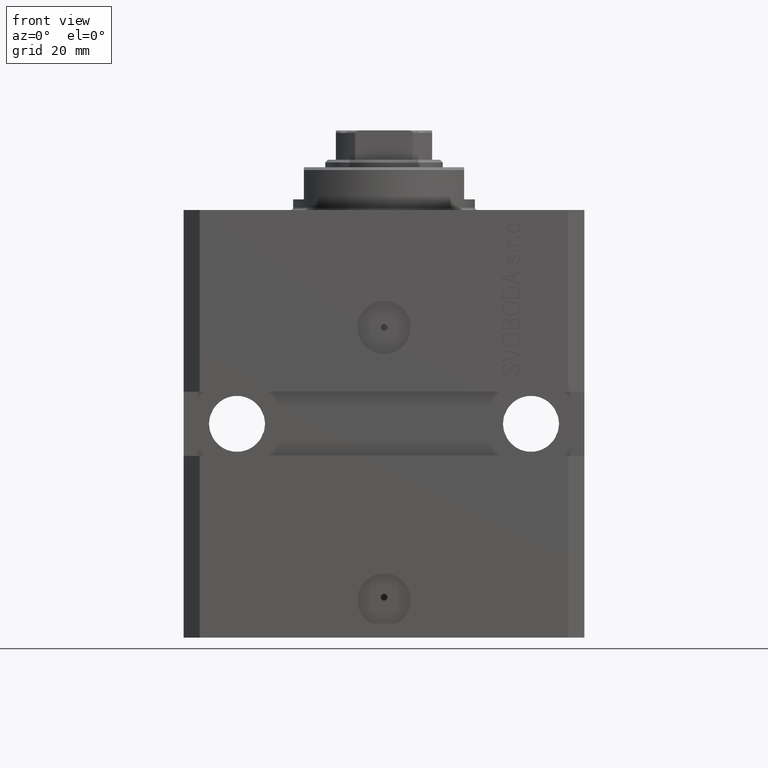
[diagram: clean part render]
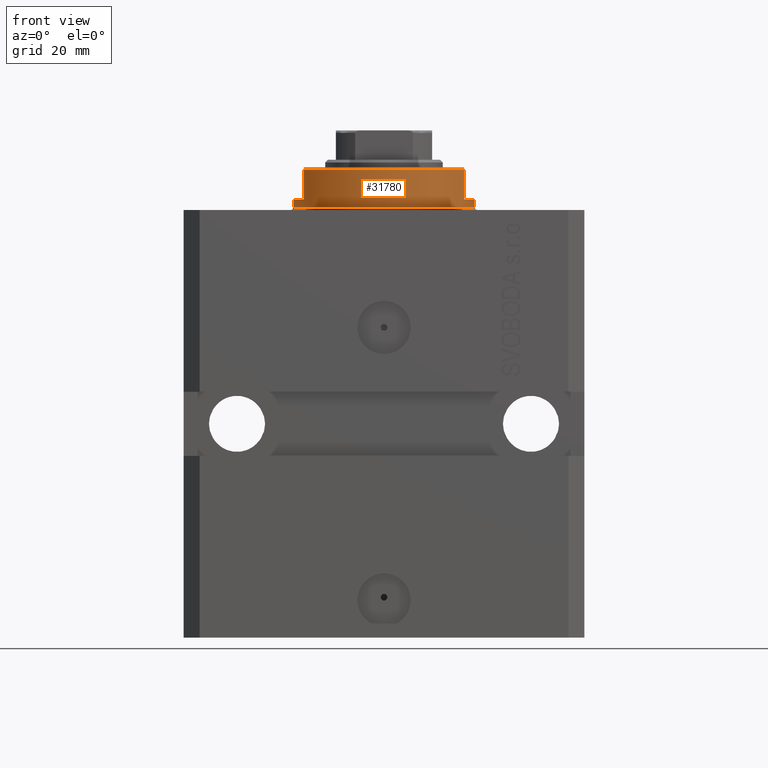
[diagram: same view with one face highlighted and labeled with its STEP entity id]
A machine part, front view. The second image highlights one B-rep face of the part: STEP entity #31780.
In plain terms, the highlighted cylindrical surface (partial cylindrical patch) has radius 17 mm, axis along (0, 0, -1).
Its self-contained STEP definition (entity closure, byte-faithful):
#382 = ORIENTED_EDGE ( 'NONE', *, *, #32406, .F. ) ;
#459 = ORIENTED_EDGE ( 'NONE', *, *, #1321, .F. ) ;
#520 = VERTEX_POINT ( 'NONE', #15144 ) ;
#963 = DIRECTION ( 'NONE',  ( -1.000000000000000000, 0.000000000000000000, 0.000000000000000000 ) ) ;
#1137 = EDGE_LOOP ( 'NONE', ( #459, #382, #44214, #12694, #5990, #39937, #24393, #39752 ) ) ;
#1321 = EDGE_CURVE ( 'NONE', #12578, #42264, #26573, .T. ) ;
#1486 = CARTESIAN_POINT ( 'NONE',  ( -17.00000000000000000, 2.081899558550500280E-15, -8.000000000000000000 ) ) ;
#1886 = CARTESIAN_POINT ( 'NONE',  ( -14.99999999999999645, -8.000000000000003553, -2.000000000000000000 ) ) ;
#3651 = AXIS2_PLACEMENT_3D ( 'NONE', #16587, #45487, #5460 ) ;
#5460 = DIRECTION ( 'NONE',  ( -1.000000000000000000, 0.000000000000000000, 0.000000000000000000 ) ) ;
#5905 = AXIS2_PLACEMENT_3D ( 'NONE', #18901, #12926, #27374 ) ;
#5990 = ORIENTED_EDGE ( 'NONE', *, *, #12316, .F. ) ;
#7098 = VERTEX_POINT ( 'NONE', #11361 ) ;
#7237 = DIRECTION ( 'NONE',  ( 1.000000000000000000, 0.000000000000000000, 0.000000000000000000 ) ) ;
#8390 = CIRCLE ( 'NONE', #17453, 17.00000000000000000 ) ;
#8890 = VERTEX_POINT ( 'NONE', #40088 ) ;
#8953 = VECTOR ( 'NONE', #23028, 1000.000000000000000 ) ;
#9562 = CARTESIAN_POINT ( 'NONE',  ( 15.00000000000000000, -8.000000000000001776, -8.000000000000000000 ) ) ;
#10056 = LINE ( 'NONE', #16225, #20717 ) ;
#10091 = CARTESIAN_POINT ( 'NONE',  ( 0.000000000000000000, 0.000000000000000000, -0.5000000000000004441 ) ) ;
#10347 = CIRCLE ( 'NONE', #31514, 17.00000000000000000 ) ;
#10440 = VECTOR ( 'NONE', #33422, 1000.000000000000000 ) ;
#10831 = VERTEX_POINT ( 'NONE', #39485 ) ;
#11361 = CARTESIAN_POINT ( 'NONE',  ( 15.00000000000000000, -8.000000000000001776, -7.500000000000013323 ) ) ;
#12310 = DIRECTION ( 'NONE',  ( 0.000000000000000000, 0.000000000000000000, 1.000000000000000000 ) ) ;
#12316 = EDGE_CURVE ( 'NONE', #29856, #7098, #45340, .T. ) ;
#12578 = VERTEX_POINT ( 'NONE', #34157 ) ;
#12694 = ORIENTED_EDGE ( 'NONE', *, *, #25784, .T. ) ;
#12926 = DIRECTION ( 'NONE',  ( -0.000000000000000000, -0.000000000000000000, 1.000000000000000000 ) ) ;
#13381 = CYLINDRICAL_SURFACE ( 'NONE', #5905, 17.00000000000000000 ) ;
#14020 = EDGE_CURVE ( 'NONE', #520, #10831, #10056, .T. ) ;
#14554 = VERTEX_POINT ( 'NONE', #1886 ) ;
#15144 = CARTESIAN_POINT ( 'NONE',  ( 17.00000000000000000, 0.000000000000000000, -2.000000000000000000 ) ) ;
#16225 = CARTESIAN_POINT ( 'NONE',  ( 17.00000000000000000, 0.000000000000000000, -8.000000000000000000 ) ) ;
#16587 = CARTESIAN_POINT ( 'NONE',  ( 0.000000000000000000, 0.000000000000000000, -2.000000000000000000 ) ) ;
#17453 = AXIS2_PLACEMENT_3D ( 'NONE', #37031, #18556, #43647 ) ;
#18556 = DIRECTION ( 'NONE',  ( 0.000000000000000000, 0.000000000000000000, -1.000000000000000000 ) ) ;
#18901 = CARTESIAN_POINT ( 'NONE',  ( 0.000000000000000000, 0.000000000000000000, -8.000000000000000000 ) ) ;
#20717 = VECTOR ( 'NONE', #24042, 1000.000000000000000 ) ;
#21071 = CIRCLE ( 'NONE', #3651, 17.00000000000000000 ) ;
#22453 = CIRCLE ( 'NONE', #36081, 17.00000000000000000 ) ;
#23028 = DIRECTION ( 'NONE',  ( -0.000000000000000000, -0.000000000000000000, 1.000000000000000000 ) ) ;
#24027 = DIRECTION ( 'NONE',  ( 0.000000000000000000, 0.000000000000000000, -1.000000000000000000 ) ) ;
#24042 = DIRECTION ( 'NONE',  ( -0.000000000000000000, -0.000000000000000000, 1.000000000000000000 ) ) ;
#24393 = ORIENTED_EDGE ( 'NONE', *, *, #14020, .T. ) ;
#25548 = EDGE_CURVE ( 'NONE', #10831, #42264, #10347, .T. ) ;
#25612 = LINE ( 'NONE', #36516, #10440 ) ;
#25784 = EDGE_CURVE ( 'NONE', #8890, #7098, #22453, .T. ) ;
#26050 = CARTESIAN_POINT ( 'NONE',  ( 0.000000000000000000, 0.000000000000000000, -7.500000000000013323 ) ) ;
#26573 = LINE ( 'NONE', #1486, #8953 ) ;
#27374 = DIRECTION ( 'NONE',  ( 1.000000000000000000, 0.000000000000000000, 0.000000000000000000 ) ) ;
#27599 = FACE_OUTER_BOUND ( 'NONE', #1137, .T. ) ;
#29856 = VERTEX_POINT ( 'NONE', #37791 ) ;
#31237 = EDGE_CURVE ( 'NONE', #14554, #8890, #25612, .T. ) ;
#31514 = AXIS2_PLACEMENT_3D ( 'NONE', #10091, #31637, #7237 ) ;
#31637 = DIRECTION ( 'NONE',  ( -0.000000000000000000, -0.000000000000000000, -1.000000000000000000 ) ) ;
#31780 = ADVANCED_FACE ( 'NONE', ( #27599 ), #13381, .T. ) ;
#31915 = VECTOR ( 'NONE', #24027, 1000.000000000000000 ) ;
#32406 = EDGE_CURVE ( 'NONE', #14554, #12578, #21071, .T. ) ;
#33422 = DIRECTION ( 'NONE',  ( 0.000000000000000000, 0.000000000000000000, -1.000000000000000000 ) ) ;
#33789 = CARTESIAN_POINT ( 'NONE',  ( -17.00000000000000000, 2.081899558550500280E-15, -0.5000000000000004441 ) ) ;
#34157 = CARTESIAN_POINT ( 'NONE',  ( -17.00000000000000000, 2.081899558550500280E-15, -2.000000000000000000 ) ) ;
#36081 = AXIS2_PLACEMENT_3D ( 'NONE', #26050, #12310, #963 ) ;
#36516 = CARTESIAN_POINT ( 'NONE',  ( -15.00000000000000000, -8.000000000000001776, -8.000000000000000000 ) ) ;
#37031 = CARTESIAN_POINT ( 'NONE',  ( 0.000000000000000000, 0.000000000000000000, -2.000000000000000000 ) ) ;
#37791 = CARTESIAN_POINT ( 'NONE',  ( 14.99999999999999645, -8.000000000000003553, -2.000000000000000000 ) ) ;
#39485 = CARTESIAN_POINT ( 'NONE',  ( 17.00000000000000000, 0.000000000000000000, -0.5000000000000004441 ) ) ;
#39752 = ORIENTED_EDGE ( 'NONE', *, *, #25548, .T. ) ;
#39937 = ORIENTED_EDGE ( 'NONE', *, *, #44369, .F. ) ;
#40088 = CARTESIAN_POINT ( 'NONE',  ( -15.00000000000000000, -8.000000000000001776, -7.500000000000014211 ) ) ;
#42264 = VERTEX_POINT ( 'NONE', #33789 ) ;
#43647 = DIRECTION ( 'NONE',  ( -1.000000000000000000, 0.000000000000000000, 0.000000000000000000 ) ) ;
#44214 = ORIENTED_EDGE ( 'NONE', *, *, #31237, .T. ) ;
#44369 = EDGE_CURVE ( 'NONE', #520, #29856, #8390, .T. ) ;
#45340 = LINE ( 'NONE', #9562, #31915 ) ;
#45487 = DIRECTION ( 'NONE',  ( 0.000000000000000000, 0.000000000000000000, -1.000000000000000000 ) ) ;